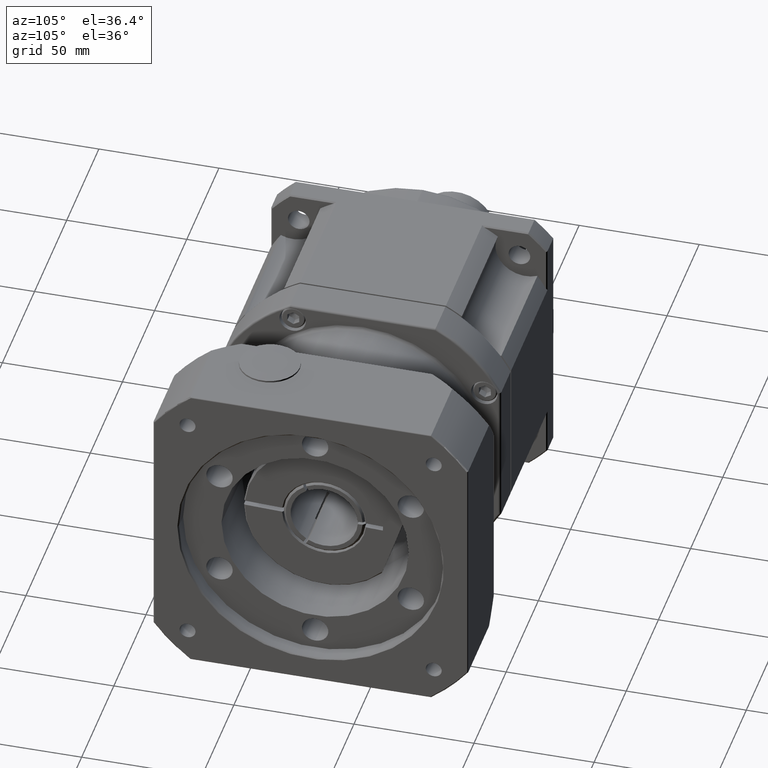
[diagram: clean part render]
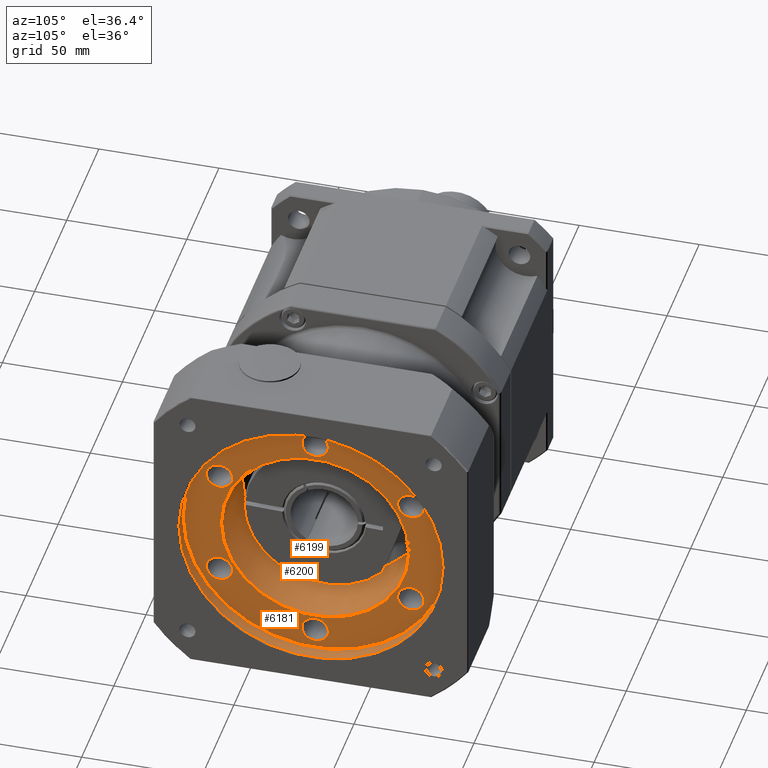
[diagram: same view with one multi-face feature highlighted, each face labeled with its STEP entity id]
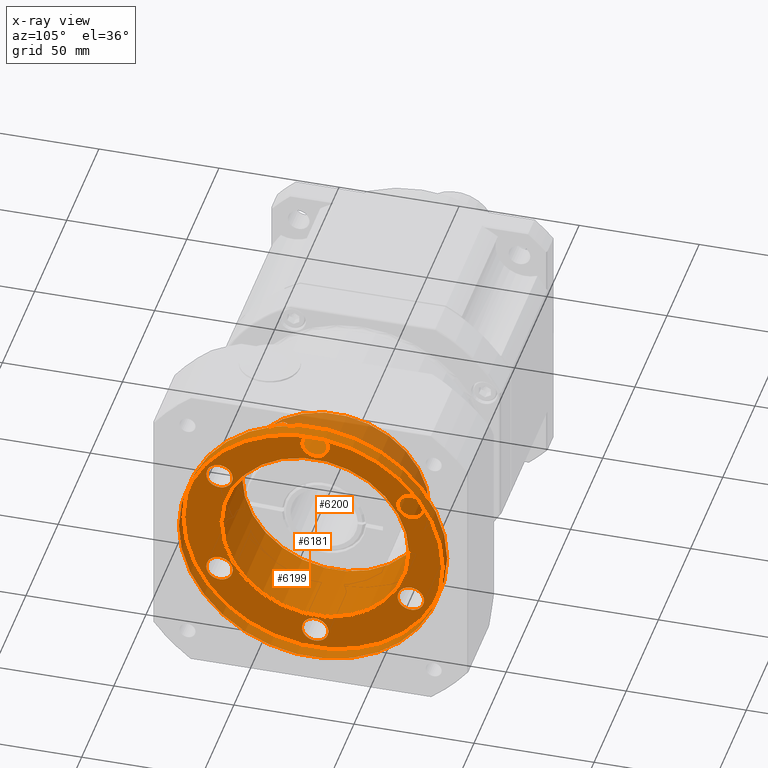
[diagram: x-ray of the same camera — body ghosted, the whole feature saturated]
A machine part, auxiliary view. The highlighted faces form ONE feature: a stepped (counterbored) hole: 2 coaxial cylindrical walls of radii 39 -> 55 mm joined by 1 annular planar shoulder face(s). The faces share edges in the B-rep.
The next image is the same camera in x-ray: the body ghosted and the whole hole feature saturated, so the bore chain is visible through the body.
Their STEP definitions:
[1] entity #6181 (Cylinder):
#1133=FACE_BOUND('',#1855,.T.);
#1379=FACE_OUTER_BOUND('',#1854,.T.);
#1854=EDGE_LOOP('',(#4320));
#1855=EDGE_LOOP('',(#4321));
#2470=CIRCLE('',#6718,55.);
#2471=CIRCLE('',#6720,55.);
#2833=VERTEX_POINT('',#9781);
#2834=VERTEX_POINT('',#9784);
#3433=EDGE_CURVE('',#2833,#2833,#2470,.T.);
#3434=EDGE_CURVE('',#2834,#2834,#2471,.T.);
#4320=ORIENTED_EDGE('',*,*,#3434,.T.);
#4321=ORIENTED_EDGE('',*,*,#3433,.F.);
#5705=CYLINDRICAL_SURFACE('',#6719,55.);
#6181=ADVANCED_FACE('',(#1379,#1133),#5705,.F.);
#6718=AXIS2_PLACEMENT_3D('',#9782,#7683,#7684);
#6719=AXIS2_PLACEMENT_3D('',#9783,#7685,#7686);
#6720=AXIS2_PLACEMENT_3D('',#9785,#7687,#7688);
#7683=DIRECTION('center_axis',(-1.,-4.72771356570088E-16,6.52809391270747E-16));
#7684=DIRECTION('ref_axis',(-4.72771356570086E-16,1.,4.21725843390295E-15));
#7685=DIRECTION('center_axis',(-1.,-4.72771356570088E-16,6.52809391270747E-16));
#7686=DIRECTION('ref_axis',(4.72771356570086E-16,-1.,-4.21725843390295E-15));
#7687=DIRECTION('center_axis',(-1.,-4.72771356570088E-16,6.52809391270747E-16));
#7688=DIRECTION('ref_axis',(-6.52809391270748E-16,4.14945855453653E-15,
-1.));
#9781=CARTESIAN_POINT('',(79.9486043931108,-178.244525766391,-104.9535040948));
#9782=CARTESIAN_POINT('Origin',(79.9486043931107,-123.244525766391,-104.9535040948));
#9783=CARTESIAN_POINT('Origin',(76.9486043931107,-123.244525766391,-104.9535040948));
#9784=CARTESIAN_POINT('',(73.4486043931108,-178.244525766391,-104.9535040948));
#9785=CARTESIAN_POINT('Origin',(73.4486043931107,-123.244525766391,-104.9535040948));
[2] entity #6200 (Cylinder):
#114=B_SPLINE_CURVE_WITH_KNOTS('',3,(#9828,#9829,#9830,#9831,#9832,#9833,
#9834,#9835,#9836,#9837,#9838,#9839,#9840,#9841,#9842,#9843,#9844,#9845,
#9846,#9847,#9848,#9849,#9850,#9851,#9852,#9853,#9854,#9855,#9856,#9857,
#9858,#9859,#9860,#9861,#9862,#9863,#9864,#9865),.UNSPECIFIED.,.T.,.F.,
(4,2,2,2,2,2,2,2,2,2,2,2,2,2,2,2,2,2,4),(0.,0.26843728074251,0.53687456148502,
0.874455839385607,1.21203711728619,1.61236587607361,2.01269463486102,2.29496702470433,
2.43610321962599,2.57723941454764,2.71837560946929,2.85951180439095,3.14178419423426,
3.54211295302167,3.94244171180909,4.28002298970967,4.61760426761026,4.88604154835277,
5.15447882909528),.UNSPECIFIED.);
#1154=FACE_BOUND('',#1895,.T.);
#1155=FACE_BOUND('',#1896,.T.);
#1398=FACE_OUTER_BOUND('',#1894,.T.);
#1894=EDGE_LOOP('',(#4360));
#1895=EDGE_LOOP('',(#4361));
#1896=EDGE_LOOP('',(#4362));
#2485=CIRCLE('',#6752,39.);
#2486=CIRCLE('',#6754,39.);
#2847=VERTEX_POINT('',#9827);
#2849=VERTEX_POINT('',#9869);
#2850=VERTEX_POINT('',#9872);
#3447=EDGE_CURVE('',#2847,#2847,#114,.T.);
#3449=EDGE_CURVE('',#2849,#2849,#2485,.T.);
#3450=EDGE_CURVE('',#2850,#2850,#2486,.T.);
#4360=ORIENTED_EDGE('',*,*,#3450,.T.);
#4361=ORIENTED_EDGE('',*,*,#3447,.T.);
#4362=ORIENTED_EDGE('',*,*,#3449,.F.);
#5718=CYLINDRICAL_SURFACE('',#6753,39.);
#6200=ADVANCED_FACE('',(#1398,#1154,#1155),#5718,.F.);
#6752=AXIS2_PLACEMENT_3D('',#9870,#7751,#7752);
#6753=AXIS2_PLACEMENT_3D('',#9871,#7753,#7754);
#6754=AXIS2_PLACEMENT_3D('',#9873,#7755,#7756);
#7751=DIRECTION('center_axis',(-1.,-4.72771356570088E-16,6.52809391270747E-16));
#7752=DIRECTION('ref_axis',(-6.52809391270748E-16,4.14945855453653E-15,
-1.));
#7753=DIRECTION('center_axis',(-1.,-4.72771356570088E-16,6.52809391270747E-16));
#7754=DIRECTION('ref_axis',(4.72771356570086E-16,-1.,-4.21725843390295E-15));
#7755=DIRECTION('center_axis',(-1.,-4.72771356570088E-16,6.52809391270747E-16));
#7756=DIRECTION('ref_axis',(-6.52809391270749E-16,4.14945855453653E-15,
-1.));
#9827=CARTESIAN_POINT('',(50.4486043931108,-140.994525766391,-70.2268932610317));
#9828=CARTESIAN_POINT('Ctrl Pts',(50.4486043931108,-140.994525766391,-70.2268932610317));
#9829=CARTESIAN_POINT('Ctrl Pts',(49.5538134573024,-140.994525766391,-70.2268932610317));
#9830=CARTESIAN_POINT('Ctrl Pts',(48.6065948176357,-141.17120992915,-70.3155533223366));
#9831=CARTESIAN_POINT('Ctrl Pts',(46.8833686311368,-141.863782816015,-70.6828619277674));
#9832=CARTESIAN_POINT('Ctrl Pts',(46.1074411886647,-142.378756756244,-70.9636075699815));
#9833=CARTESIAN_POINT('Ctrl Pts',(44.7364572906092,-143.659134028767,-71.7130654528317));
#9834=CARTESIAN_POINT('Ctrl Pts',(44.129814603847,-144.550018679827,-72.267726401147));
#9835=CARTESIAN_POINT('Ctrl Pts',(43.3621404042768,-146.411902390879,-73.5599257128588));
#9836=CARTESIAN_POINT('Ctrl Pts',(43.1986043931108,-147.380858428208,-74.298917483727));
#9837=CARTESIAN_POINT('Ctrl Pts',(43.1986043931108,-149.268726147557,-75.8756483313509));
#9838=CARTESIAN_POINT('Ctrl Pts',(43.4240609626243,-150.320213479876,-76.8506760848468));
#9839=CARTESIAN_POINT('Ctrl Pts',(44.2952497848968,-152.218053149232,-78.8116504568185));
#9840=CARTESIAN_POINT('Ctrl Pts',(44.9369015907056,-153.066381118192,-79.7974952209562));
#9841=CARTESIAN_POINT('Ctrl Pts',(46.2717490543562,-154.215010435087,-81.238325586544));
#9842=CARTESIAN_POINT('Ctrl Pts',(46.9723470824794,-154.665844844846,-81.8449841785997));
#9843=CARTESIAN_POINT('Ctrl Pts',(48.1843914241119,-155.145586482505,-82.5169697943498));
#9844=CARTESIAN_POINT('Ctrl Pts',(48.6154533718094,-155.273803279907,-82.7015595535121));
#9845=CARTESIAN_POINT('Ctrl Pts',(49.5122745938112,-155.448307515884,-82.9548656149032));
#9846=CARTESIAN_POINT('Ctrl Pts',(49.9781504100386,-155.494525766391,-83.02321681898));
#9847=CARTESIAN_POINT('Ctrl Pts',(50.9190583761829,-155.494525766391,-83.02321681898));
#9848=CARTESIAN_POINT('Ctrl Pts',(51.3849341924103,-155.448307515884,-82.9548656149032));
#9849=CARTESIAN_POINT('Ctrl Pts',(52.2817554144122,-155.273803279907,-82.7015595535121));
#9850=CARTESIAN_POINT('Ctrl Pts',(52.7128173621096,-155.145586482505,-82.5169697943498));
#9851=CARTESIAN_POINT('Ctrl Pts',(53.9248617037422,-154.665844844846,-81.8449841785997));
#9852=CARTESIAN_POINT('Ctrl Pts',(54.6254597318653,-154.215010435087,-81.238325586544));
#9853=CARTESIAN_POINT('Ctrl Pts',(55.9603071955159,-153.066381118192,-79.7974952209562));
#9854=CARTESIAN_POINT('Ctrl Pts',(56.6019590013248,-152.218053149232,-78.8116504568185));
#9855=CARTESIAN_POINT('Ctrl Pts',(57.4731478235973,-150.320213479876,-76.8506760848468));
#9856=CARTESIAN_POINT('Ctrl Pts',(57.6986043931108,-149.268726147557,-75.875648331351));
#9857=CARTESIAN_POINT('Ctrl Pts',(57.6986043931108,-147.380858428208,-74.298917483727));
#9858=CARTESIAN_POINT('Ctrl Pts',(57.5350683819448,-146.411902390879,-73.5599257128589));
#9859=CARTESIAN_POINT('Ctrl Pts',(56.7673941823745,-144.550018679827,-72.2677264011471));
#9860=CARTESIAN_POINT('Ctrl Pts',(56.1607514956124,-143.659134028767,-71.7130654528317));
#9861=CARTESIAN_POINT('Ctrl Pts',(54.7897675975569,-142.378756756244,-70.9636075699815));
#9862=CARTESIAN_POINT('Ctrl Pts',(54.0138401550848,-141.863782816015,-70.6828619277674));
#9863=CARTESIAN_POINT('Ctrl Pts',(52.2906139685858,-141.17120992915,-70.3155533223366));
#9864=CARTESIAN_POINT('Ctrl Pts',(51.3433953289191,-140.994525766391,-70.2268932610317));
#9865=CARTESIAN_POINT('Ctrl Pts',(50.4486043931108,-140.994525766391,-70.2268932610317));
#9869=CARTESIAN_POINT('',(73.4486043931108,-162.244525766391,-104.9535040948));
#9870=CARTESIAN_POINT('Origin',(73.4486043931107,-123.244525766391,-104.9535040948));
#9871=CARTESIAN_POINT('Origin',(57.4486043931107,-123.244525766391,-104.9535040948));
#9872=CARTESIAN_POINT('',(41.4486043931108,-162.244525766391,-104.9535040948));
#9873=CARTESIAN_POINT('Origin',(41.4486043931107,-123.244525766391,-104.9535040948));
[3] entity #6199 (Plane):
#918=PLANE('',#6751);
#1147=FACE_BOUND('',#1887,.T.);
#1148=FACE_BOUND('',#1888,.T.);
#1149=FACE_BOUND('',#1889,.T.);
#1150=FACE_BOUND('',#1890,.T.);
#1151=FACE_BOUND('',#1891,.T.);
#1152=FACE_BOUND('',#1892,.T.);
#1153=FACE_BOUND('',#1893,.T.);
#1397=FACE_OUTER_BOUND('',#1886,.T.);
#1886=EDGE_LOOP('',(#4352));
#1887=EDGE_LOOP('',(#4353));
#1888=EDGE_LOOP('',(#4354));
#1889=EDGE_LOOP('',(#4355));
#1890=EDGE_LOOP('',(#4356));
#1891=EDGE_LOOP('',(#4357));
#1892=EDGE_LOOP('',(#4358));
#1893=EDGE_LOOP('',(#4359));
#2471=CIRCLE('',#6720,55.);
#2478=CIRCLE('',#6738,5.5);
#2479=CIRCLE('',#6740,5.5);
#2480=CIRCLE('',#6742,5.5);
#2481=CIRCLE('',#6744,5.5);
#2482=CIRCLE('',#6746,5.5);
#2483=CIRCLE('',#6748,5.5);
#2485=CIRCLE('',#6752,39.);
#2834=VERTEX_POINT('',#9784);
#2841=VERTEX_POINT('',#9809);
#2842=VERTEX_POINT('',#9812);
#2843=VERTEX_POINT('',#9815);
#2844=VERTEX_POINT('',#9818);
#2845=VERTEX_POINT('',#9821);
#2846=VERTEX_POINT('',#9824);
#2849=VERTEX_POINT('',#9869);
#3434=EDGE_CURVE('',#2834,#2834,#2471,.T.);
#3441=EDGE_CURVE('',#2841,#2841,#2478,.T.);
#3442=EDGE_CURVE('',#2842,#2842,#2479,.T.);
#3443=EDGE_CURVE('',#2843,#2843,#2480,.T.);
#3444=EDGE_CURVE('',#2844,#2844,#2481,.T.);
#3445=EDGE_CURVE('',#2845,#2845,#2482,.T.);
#3446=EDGE_CURVE('',#2846,#2846,#2483,.T.);
#3449=EDGE_CURVE('',#2849,#2849,#2485,.T.);
#4352=ORIENTED_EDGE('',*,*,#3434,.F.);
#4353=ORIENTED_EDGE('',*,*,#3441,.T.);
#4354=ORIENTED_EDGE('',*,*,#3442,.T.);
#4355=ORIENTED_EDGE('',*,*,#3443,.T.);
#4356=ORIENTED_EDGE('',*,*,#3444,.T.);
#4357=ORIENTED_EDGE('',*,*,#3445,.T.);
#4358=ORIENTED_EDGE('',*,*,#3446,.T.);
#4359=ORIENTED_EDGE('',*,*,#3449,.T.);
#6199=ADVANCED_FACE('',(#1397,#1147,#1148,#1149,#1150,#1151,#1152,#1153),
#918,.F.);
#6720=AXIS2_PLACEMENT_3D('',#9785,#7687,#7688);
#6738=AXIS2_PLACEMENT_3D('',#9810,#7723,#7724);
#6740=AXIS2_PLACEMENT_3D('',#9813,#7727,#7728);
#6742=AXIS2_PLACEMENT_3D('',#9816,#7731,#7732);
#6744=AXIS2_PLACEMENT_3D('',#9819,#7735,#7736);
#6746=AXIS2_PLACEMENT_3D('',#9822,#7739,#7740);
#6748=AXIS2_PLACEMENT_3D('',#9825,#7743,#7744);
#6751=AXIS2_PLACEMENT_3D('',#9868,#7749,#7750);
#6752=AXIS2_PLACEMENT_3D('',#9870,#7751,#7752);
#7687=DIRECTION('center_axis',(-1.,-4.72771356570088E-16,6.52809391270747E-16));
#7688=DIRECTION('ref_axis',(-6.52809391270748E-16,4.14945855453653E-15,
-1.));
#7723=DIRECTION('center_axis',(-1.,-4.72771356570088E-16,6.52809391270747E-16));
#7724=DIRECTION('ref_axis',(-8.30273093359517E-17,0.866025403784437,0.500000000000003));
#7727=DIRECTION('center_axis',(-1.,-4.72771356570088E-16,6.52809391270747E-16));
#7728=DIRECTION('ref_axis',(-7.358367006067E-16,0.866025403784441,-0.499999999999997));
#7731=DIRECTION('center_axis',(-1.,-4.72771356570088E-16,6.52809391270747E-16));
#7732=DIRECTION('ref_axis',(-6.52809391270748E-16,3.99806450572401E-15,
-1.));
#7735=DIRECTION('center_axis',(-1.,-4.72771356570088E-16,6.52809391270747E-16));
#7736=DIRECTION('ref_axis',(8.30273093359512E-17,-0.866025403784437,-0.500000000000003));
#7739=DIRECTION('center_axis',(-1.,-4.72771356570088E-16,6.52809391270747E-16));
#7740=DIRECTION('ref_axis',(7.358367006067E-16,-0.866025403784441,0.499999999999996));
#7743=DIRECTION('center_axis',(-1.,-4.72771356570088E-16,6.52809391270747E-16));
#7744=DIRECTION('ref_axis',(6.52809391270749E-16,-4.14945855453653E-15,
1.));
#7749=DIRECTION('center_axis',(-1.,-4.72771356570088E-16,6.52809391270747E-16));
#7750=DIRECTION('ref_axis',(0.,2.8421709430404E-15,-1.));
#7751=DIRECTION('center_axis',(-1.,-4.72771356570088E-16,6.52809391270747E-16));
#7752=DIRECTION('ref_axis',(-6.52809391270748E-16,4.14945855453653E-15,
-1.));
#9784=CARTESIAN_POINT('',(73.4486043931108,-178.244525766391,-104.9535040948));
#9785=CARTESIAN_POINT('Origin',(73.4486043931107,-123.244525766391,-104.9535040948));
#9809=CARTESIAN_POINT('',(73.4486043931107,-78.6442174714925,-79.2035040947999));
#9810=CARTESIAN_POINT('Origin',(73.4486043931107,-83.4073571923069,-81.9535040947999));
#9812=CARTESIAN_POINT('',(73.4486043931107,-78.6442174714923,-130.7035040948));
#9813=CARTESIAN_POINT('Origin',(73.4486043931107,-83.4073571923067,-127.9535040948));
#9815=CARTESIAN_POINT('',(73.4486043931107,-123.244525766391,-156.4535040948));
#9816=CARTESIAN_POINT('Origin',(73.4486043931107,-123.244525766391,-150.9535040948));
#9818=CARTESIAN_POINT('',(73.4486043931107,-167.844834061289,-130.7035040948));
#9819=CARTESIAN_POINT('Origin',(73.4486043931107,-163.081694340475,-127.9535040948));
#9821=CARTESIAN_POINT('',(73.4486043931108,-167.84483406129,-79.2035040948002));
#9822=CARTESIAN_POINT('Origin',(73.4486043931108,-163.081694340475,-81.9535040948002));
#9824=CARTESIAN_POINT('',(73.4486043931108,-123.244525766391,-53.4535040948001));
#9825=CARTESIAN_POINT('Origin',(73.4486043931108,-123.244525766391,-58.9535040948001));
#9868=CARTESIAN_POINT('Origin',(73.4486043931108,-162.244525766391,-104.9535040948));
#9869=CARTESIAN_POINT('',(73.4486043931108,-162.244525766391,-104.9535040948));
#9870=CARTESIAN_POINT('Origin',(73.4486043931107,-123.244525766391,-104.9535040948));